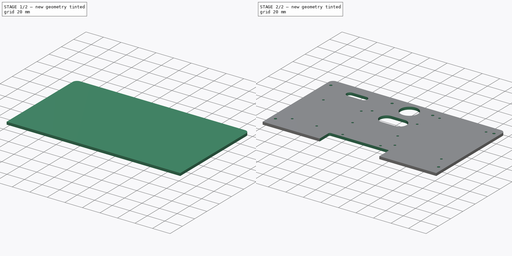
[diagram: build sequence overview — one tinted view per stage of 2, left to right]
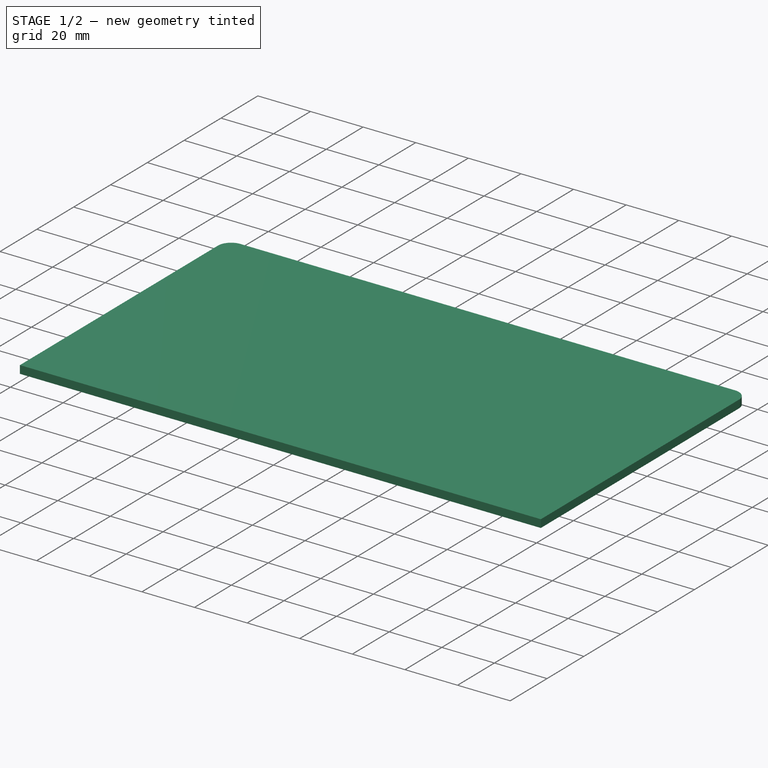
[diagram: stage 1 of 2 — iso view after this stage's code; geometry added in this stage tinted green]
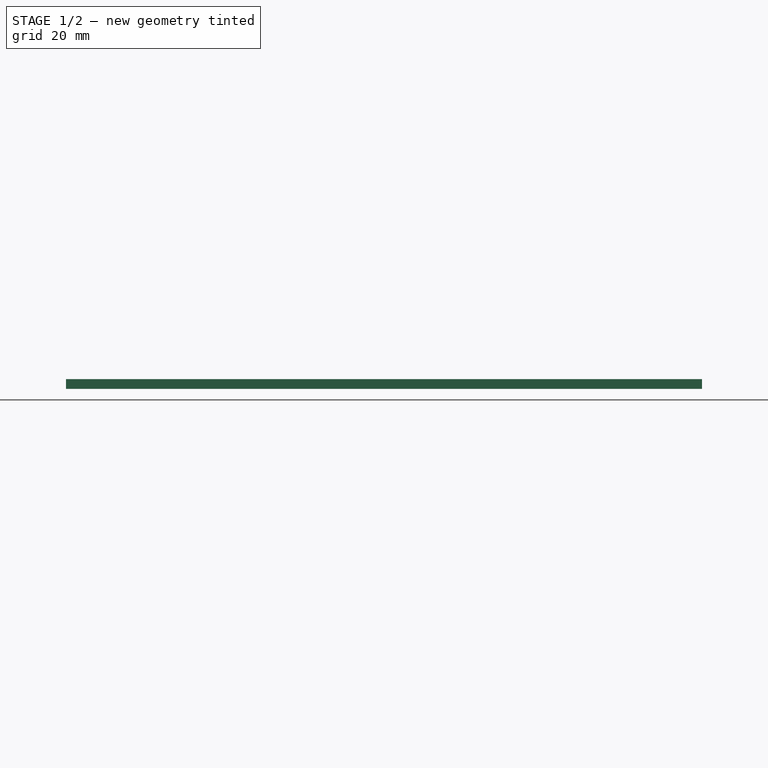
[diagram: stage 1 of 2 — front view after this stage's code; geometry added in this stage tinted green]
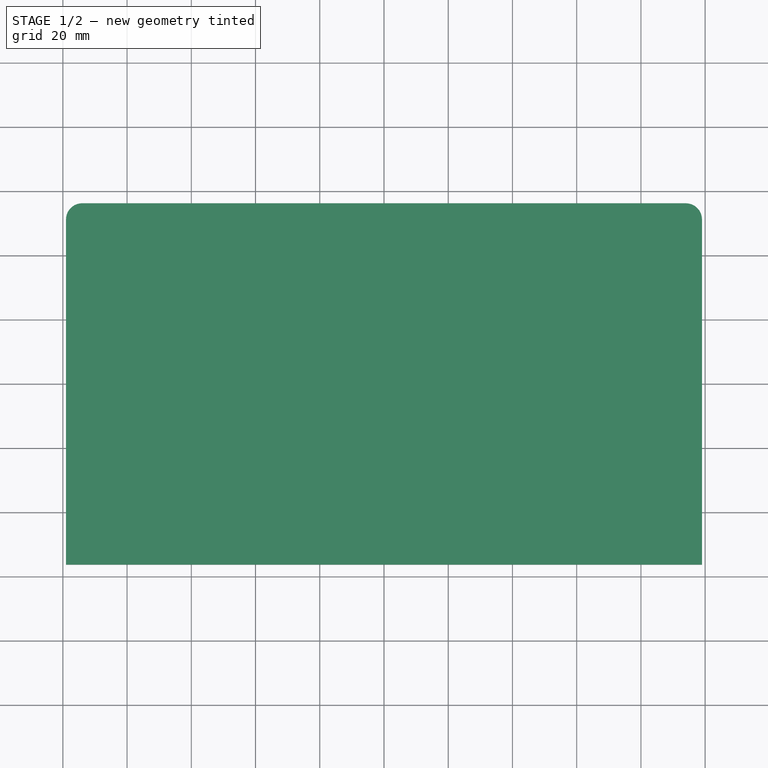
[diagram: stage 1 of 2 — top view after this stage's code; geometry added in this stage tinted green]
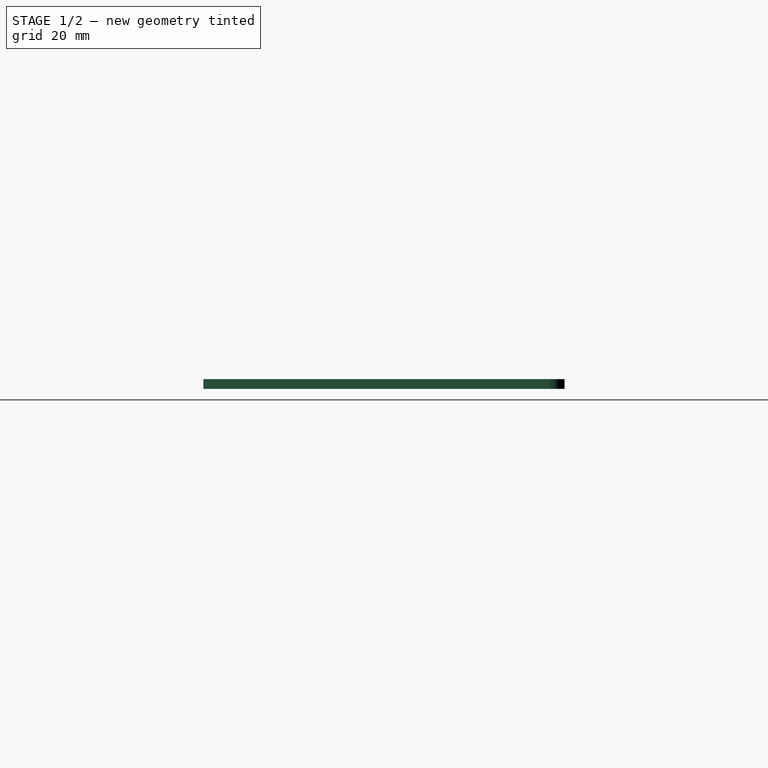
[diagram: stage 1 of 2 — right view after this stage's code; geometry added in this stage tinted green]
FCSTD DOCUMENT  (FreeCAD 0.18.4R)
Label: quimera_new_electronics_plate
License: All rights reserved
LicenseURL: http://en.wikipedia.org/wiki/All_rights_reserved
objects: Sketcher::SketchObject×2, PartDesign::Pad×1, PartDesign::Fillet×1, PartDesign::Pocket×1, PartDesign::Body×1
note: 8 computed .brp shape members not serialized (recipe doc carries the construction recipe); baked Part::Feature solids carry a one-line shape summary decoded from their .brp

FEATURE [Sketcher::SketchObject] Sketch
  MapMode = 5
  Support = -> [XY_Plane]
  sketch-geometry (4):
    g0: LineSegment StartX=-99 StartY=56.25 StartZ=0 EndX=99 EndY=56.25 EndZ=0
    g1: LineSegment StartX=99 StartY=56.25 StartZ=0 EndX=99 EndY=-56.25 EndZ=0
    g2: LineSegment StartX=99 StartY=-56.25 StartZ=0 EndX=-99 EndY=-56.25 EndZ=0
    g3: LineSegment StartX=-99 StartY=-56.25 StartZ=0 EndX=-99 EndY=56.25 EndZ=0
  constraints (11):
    c: Coincident(g0,g1)
    c: Coincident(g1,g2)
    c: Coincident(g2,g3)
    c: Coincident(g3,g0)
    c: Horizontal(g0)
    c: Horizontal(g2)
    c: Vertical(g1)
    c: Vertical(g3)
    c: Symmetric(g2,g0,g-1)
    c: DistanceY(g3,g3) = 112.5
    c: DistanceX(g2,g2) = 198
FEATURE [PartDesign::Pad] Pad
  Length = 3
  Length2 = 100
  Profile = -> Sketch
  Type = 0
FEATURE [PartDesign::Fillet] Fillet
  Base = -> Pad [Edge1,Edge2]
  BaseFeature = -> Pad
  Radius = 5
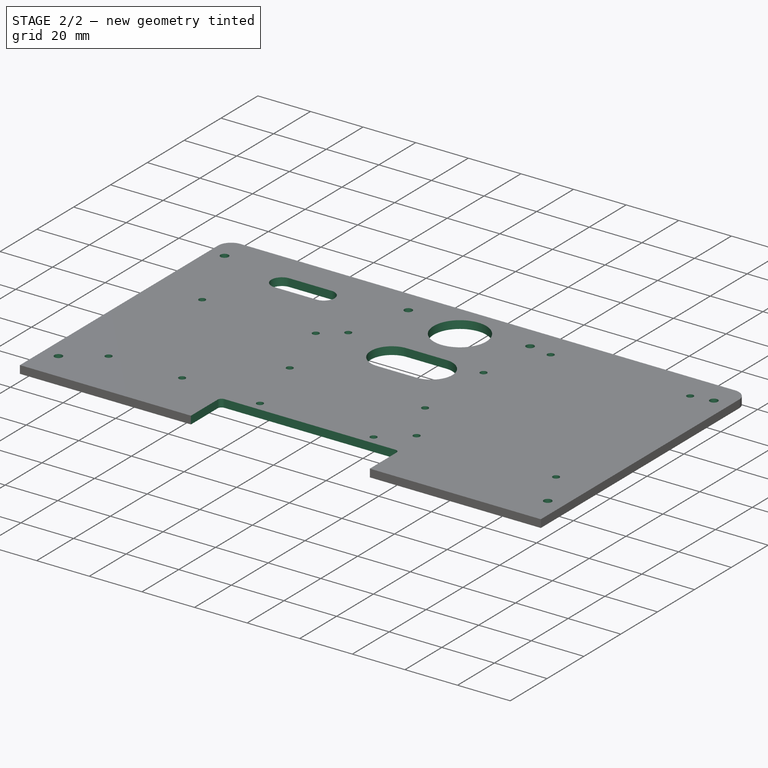
[diagram: stage 2 of 2 — iso view after this stage's code; geometry added in this stage tinted green]
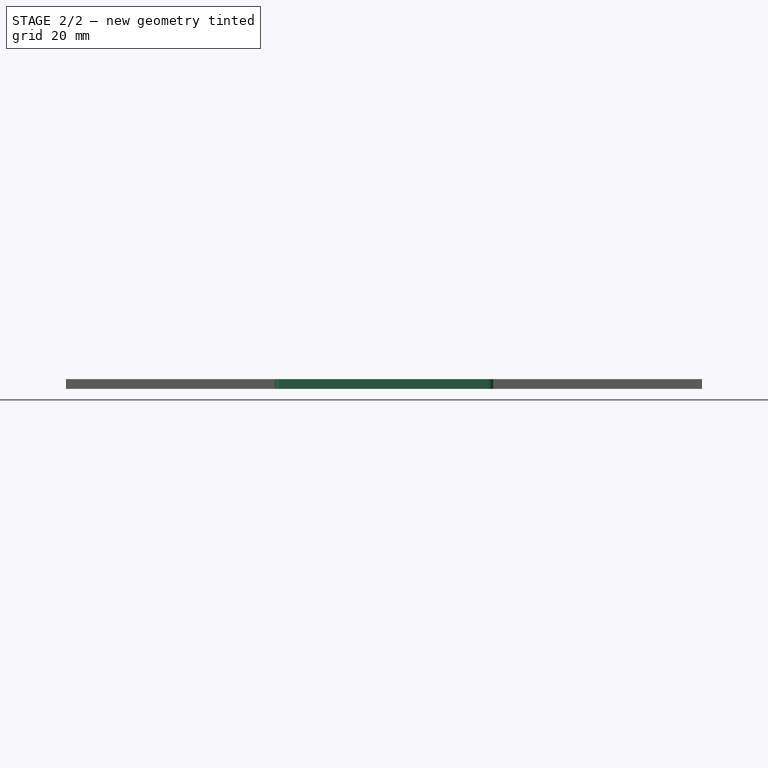
[diagram: stage 2 of 2 — front view after this stage's code; geometry added in this stage tinted green]
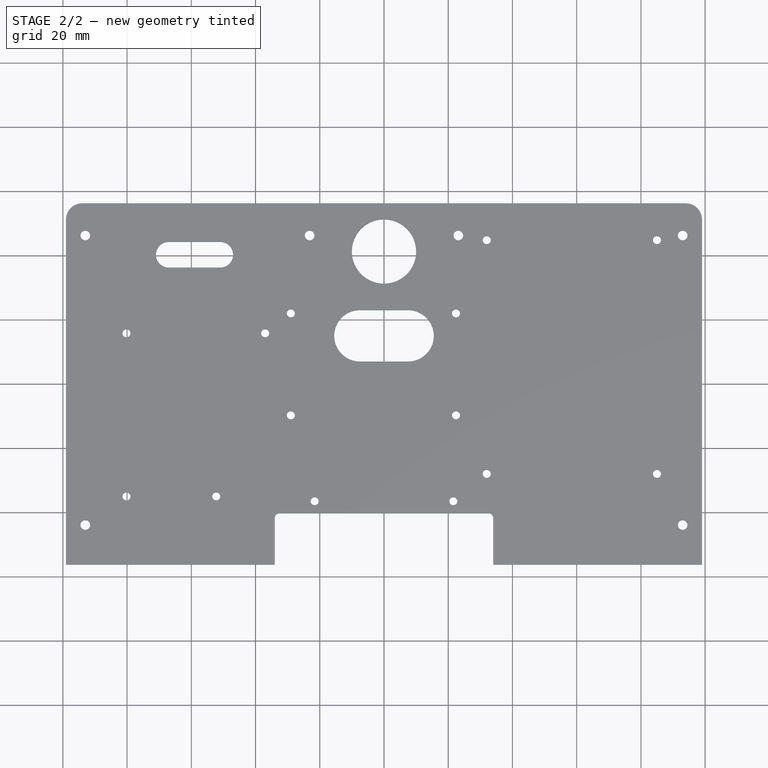
[diagram: stage 2 of 2 — top view after this stage's code; geometry added in this stage tinted green]
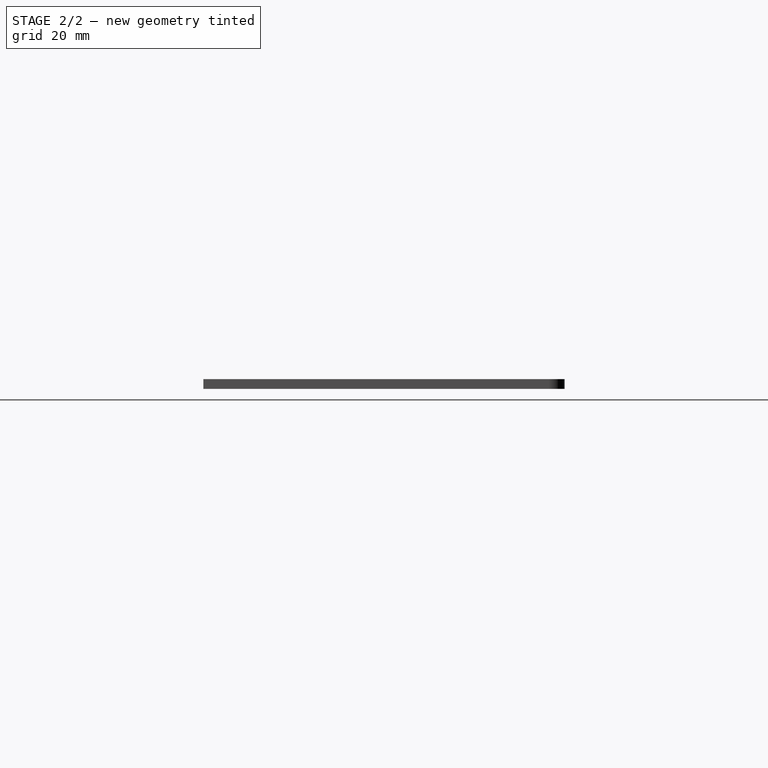
[diagram: stage 2 of 2 — right view after this stage's code; geometry added in this stage tinted green]
FEATURE [Sketcher::SketchObject] Sketch001
  MapMode = 5
  Placement = pos=(0,0,3) rot=(0,0,1;0rad)
  Support = -> [Fillet]
  sketch-geometry (51):
    g0: LineSegment StartX=-32.5 StartY=-40.25 StartZ=0 EndX=32.5 EndY=-40.25 EndZ=0
    g1: LineSegment StartX=34 StartY=-41.75 StartZ=0 EndX=34 EndY=-56.25 EndZ=0
    g2: LineSegment StartX=34 StartY=-56.25 StartZ=0 EndX=-34 EndY=-56.25 EndZ=0
    g3: LineSegment StartX=-34 StartY=-56.25 StartZ=0 EndX=-34 EndY=-41.75 EndZ=0
    g4: ArcOfCircle CenterX=-32.5 CenterY=-41.75 CenterZ=0 NormalX=0 NormalY=0 NormalZ=1 AngleXU=0 Radius=1.5 StartAngle=1.5708 EndAngle=3.14159
    g5: ArcOfCircle CenterX=32.5 CenterY=-41.75 CenterZ=0 NormalX=0 NormalY=0 NormalZ=1 AngleXU=0 Radius=1.5 StartAngle=2e-16 EndAngle=1.5708
    g6: Circle CenterX=-93 CenterY=46.25 CenterZ=0 NormalX=0 NormalY=0 NormalZ=1 AngleXU=0 Radius=1.5
    g7: Circle CenterX=-93 CenterY=-43.92 CenterZ=0 NormalX=0 NormalY=0 NormalZ=1 AngleXU=0 Radius=1.5
    g8: Circle CenterX=93 CenterY=46.25 CenterZ=0 NormalX=0 NormalY=0 NormalZ=1 AngleXU=0 Radius=1.5
    g9: Circle CenterX=93 CenterY=-43.92 CenterZ=0 NormalX=0 NormalY=0 NormalZ=1 AngleXU=0 Radius=1.5
    g10: Circle CenterX=-23.15 CenterY=46.25 CenterZ=0 NormalX=0 NormalY=0 NormalZ=1 AngleXU=0 Radius=1.5
    g11: Circle CenterX=23.15 CenterY=46.25 CenterZ=0 NormalX=0 NormalY=0 NormalZ=1 AngleXU=0 Radius=1.5
    g12: Circle CenterX=0 CenterY=41.25 CenterZ=0 NormalX=0 NormalY=0 NormalZ=1 AngleXU=0 Radius=10
    g13: ArcOfCircle CenterX=-67 CenterY=40.25 CenterZ=0 NormalX=0 NormalY=0 NormalZ=1 AngleXU=0 Radius=4 StartAngle=1.5708 EndAngle=4.71239
    g14: ArcOfCircle CenterX=-51 CenterY=40.25 CenterZ=0 NormalX=0 NormalY=0 NormalZ=1 AngleXU=0 Radius=4 StartAngle=4.71239 EndAngle=7.85398
    g15: LineSegment StartX=-67 StartY=36.25 StartZ=0 EndX=-51 EndY=36.25 EndZ=0
    g16: LineSegment StartX=-67 StartY=44.25 StartZ=0 EndX=-51 EndY=44.25 EndZ=0
    g17: Circle CenterX=-21.59 CenterY=-36.5 CenterZ=0 NormalX=0 NormalY=0 NormalZ=1 AngleXU=0 Radius=1.25
    g18: Circle CenterX=21.59 CenterY=-36.5 CenterZ=0 NormalX=0 NormalY=0 NormalZ=1 AngleXU=0 Radius=1.25
    g19: LineSegment [constr] StartX=-29 StartY=22 StartZ=0 EndX=22.43 EndY=22 EndZ=0
    g20: LineSegment [constr] StartX=22.43 StartY=22 StartZ=0 EndX=22.43 EndY=-9.75 EndZ=0
    g21: LineSegment [constr] StartX=22.43 StartY=-9.75 StartZ=0 EndX=-29 EndY=-9.75 EndZ=0
    g22: LineSegment [constr] StartX=-29 StartY=-9.75 StartZ=0 EndX=-29 EndY=22 EndZ=0
    g23: Circle CenterX=-29 CenterY=22 CenterZ=0 NormalX=0 NormalY=0 NormalZ=1 AngleXU=0 Radius=1.25
    g24: Circle CenterX=-29 CenterY=-9.75 CenterZ=0 NormalX=0 NormalY=0 NormalZ=1 AngleXU=0 Radius=1.25
    g25: Circle CenterX=22.43 CenterY=-9.75 CenterZ=0 NormalX=0 NormalY=0 NormalZ=1 AngleXU=0 Radius=1.25
    g26: Circle CenterX=22.43 CenterY=22 CenterZ=0 NormalX=0 NormalY=0 NormalZ=1 AngleXU=0 Radius=1.25
    g27: LineSegment [constr] StartX=-80.18 StartY=15.8 StartZ=0 EndX=-37 EndY=15.8 EndZ=0
    g28: LineSegment [constr] StartX=-37 StartY=15.8 StartZ=0 EndX=-37 EndY=-35 EndZ=0
    g29: LineSegment [constr] StartX=-37 StartY=-35 StartZ=0 EndX=-80.18 EndY=-35 EndZ=0
    g30: LineSegment [constr] StartX=-80.18 StartY=-35 StartZ=0 EndX=-80.18 EndY=15.8 EndZ=0
    g31: Circle CenterX=-80.18 CenterY=15.8 CenterZ=0 NormalX=0 NormalY=0 NormalZ=1 AngleXU=0 Radius=1.25
    g32: Circle CenterX=-37 CenterY=15.8 CenterZ=0 NormalX=0 NormalY=0 NormalZ=1 AngleXU=0 Radius=1.25
    g33: Circle CenterX=-80.18 CenterY=-35 CenterZ=0 NormalX=0 NormalY=0 NormalZ=1 AngleXU=0 Radius=1.25
    g34: LineSegment [constr] StartX=32 StartY=44.8 StartZ=0 EndX=85 EndY=44.8 EndZ=0
    g35: LineSegment [constr] StartX=85 StartY=44.8 StartZ=0 EndX=85 EndY=-28 EndZ=0
    g36: LineSegment [constr] StartX=85 StartY=-28 StartZ=0 EndX=32 EndY=-28 EndZ=0
    g37: LineSegment [constr] StartX=32 StartY=-28 StartZ=0 EndX=32 EndY=44.8 EndZ=0
    g38: Circle CenterX=32 CenterY=44.8 CenterZ=0 NormalX=0 NormalY=0 NormalZ=1 AngleXU=0 Radius=1.25
    g39: Circle CenterX=85 CenterY=44.8 CenterZ=0 NormalX=0 NormalY=0 NormalZ=1 AngleXU=0 Radius=1.25
    g40: Circle CenterX=32 CenterY=-28 CenterZ=0 NormalX=0 NormalY=0 NormalZ=1 AngleXU=0 Radius=1.25
    g41: Circle CenterX=85 CenterY=-28 CenterZ=0 NormalX=0 NormalY=0 NormalZ=1 AngleXU=0 Radius=1.25
    g42: LineSegment [constr] StartX=28.5 StartY=48.3 StartZ=0 EndX=88.5 EndY=48.3 EndZ=0
    g43: LineSegment [constr] StartX=88.5 StartY=48.3 StartZ=0 EndX=88.5 EndY=-41.7 EndZ=0
    g44: LineSegment [constr] StartX=88.5 StartY=-41.7 StartZ=0 EndX=28.5 EndY=-41.7 EndZ=0
    g45: LineSegment [constr] StartX=28.5 StartY=-41.7 StartZ=0 EndX=28.5 EndY=48.3 EndZ=0
    g46: ArcOfCircle CenterX=-7.5 CenterY=15 CenterZ=0 NormalX=0 NormalY=0 NormalZ=1 AngleXU=0 Radius=8 StartAngle=1.5708 EndAngle=4.71239
    g47: ArcOfCircle CenterX=7.5 CenterY=15 CenterZ=0 NormalX=0 NormalY=0 NormalZ=1 AngleXU=0 Radius=8 StartAngle=4.71239 EndAngle=7.85398
    g48: LineSegment StartX=-7.5 StartY=7 StartZ=0 EndX=7.5 EndY=7 EndZ=0
    g49: LineSegment StartX=-7.5 StartY=23 StartZ=0 EndX=7.5 EndY=23 EndZ=0
    g50: Circle CenterX=-52.24 CenterY=-35 CenterZ=0 NormalX=0 NormalY=0 NormalZ=1 AngleXU=0 Radius=1.25
  constraints (131):
    c: Coincident(g1,g2)
    c: Coincident(g2,g3)
    c: Horizontal(g0)
    c: Vertical(g1)
    c: Vertical(g3)
    c: Tangent(g0,g4) = 1.5708
    c: Tangent(g3,g4) = 1.5708
    c: Tangent(g0,g5) = 1.5708
    c: Tangent(g1,g5) = 1.5708
    c: Equal(g4,g5)
    c: Symmetric(g2,g1,g-2)
    c: DistanceX(g2,g2) = 68
    c: Radius(g4) = 1.5
    c: DistanceY(g2,g0) = 16
    c: DistanceY(g2) = -56.25
    c: Horizontal(g6,g10)
    c: Symmetric(g10,g11,g-2)
    c: Symmetric(g6,g8,g-2)
    c: Equal(g6,g7)
    c: Equal(g7,g10)
    c: Equal(g10,g11)
    c: Equal(g11,g9)
    c: Equal(g9,g8)
    c: Radius(g6) = 1.5
    c: DistanceX(g6,g8) = 186
    c: DistanceY(g9,g8) = 90.17
    c: Vertical(g8,g9)
    c: Vertical(g6,g7)
    c: DistanceX(g10,g11) = 46.3
    c: DistanceY(g6) = 46.25
    c: Horizontal(g7,g9)
    c: PointOnObject(g12,g-2)
    c: Radius(g12) = 10
    c: Tangent(g13,g16) = 1.5708
    c: Tangent(g13,g15) = -1.5708
    c: Tangent(g15,g14) = -1.5708
    c: Tangent(g16,g14) = 1.5708
    c: Horizontal(g15)
    c: Equal(g13,g14)
    c: Coincident(g19,g20)
    c: Coincident(g20,g21)
    c: Coincident(g21,g22)
    c: Coincident(g22,g19)
    c: Horizontal(g19)
    c: Vertical(g20)
    c: Vertical(g22)
    c: Coincident(g23,g19)
    c: Coincident(g24,g21)
    c: Coincident(g25,g20)
    c: Coincident(g26,g19)
    c: Equal(g23,g26)
    c: Equal(g26,g25)
    c: Equal(g25,g24)
    c: DistanceX(g19,g19) = 51.43
    c: DistanceY(g20,g20) = 31.75
    c: DistanceY(g12) = 41.25
    c: DistanceY(g26) = 22
    c: Symmetric(g17,g18,g-2)
    c: Equal(g17,g18)
    c: DistanceX(g17,g18) = 43.18
    c: Radius(g17) = 1.25
    c: Radius(g24) = 1.25
    c: DistanceX(g15,g15) = 16
    c: Radius(g14) = 4
    c: DistanceY(g18) = -36.5
    c: DistanceX(g14) = -51
    c: DistanceY(g14) = 40.25
    c: Coincident(g27,g28)
    c: Coincident(g28,g29)
    c: Coincident(g29,g30)
    c: Coincident(g30,g27)
    c: Horizontal(g27)
    c: Horizontal(g29)
    c: Vertical(g28)
    c: Vertical(g30)
    c: Coincident(g31,g27)
    c: Coincident(g32,g27)
    c: Coincident(g33,g29)
    c: Equal(g31,g33)
    c: Equal(g32,g33)
    c: Radius(g33) = 1.25
    c: DistanceX(g29,g29) = 43.18
    c: DistanceY(g30,g30) = 50.8
    c: Coincident(g34,g35)
    c: Coincident(g35,g36)
    c: Coincident(g36,g37)
    c: Coincident(g37,g34)
    c: Horizontal(g34)
    c: Horizontal(g36)
    c: Vertical(g35)
    c: Vertical(g37)
    c: Coincident(g38,g34)
    c: Coincident(g39,g34)
    c: Coincident(g40,g36)
    c: Coincident(g41,g35)
    c: Equal(g41,g40)
    c: Equal(g40,g38)
    c: Equal(g38,g39)
    c: Radius(g40) = 1.25
    c: DistanceX(g36,g36) = 53
    c: DistanceY(g35,g35) = 72.8
    c: Coincident(g42,g43)
    c: Coincident(g43,g44)
    c: Coincident(g44,g45)
    c: Coincident(g45,g42)
    c: Horizontal(g42)
    c: Horizontal(g44)
    c: Vertical(g43)
    c: Vertical(g45)
    c: DistanceX(g41,g43) = 3.5
    c: DistanceX(g44,g44) = 60
    c: DistanceY(g43,g43) = 90
    c: DistanceY(g39,g42) = 3.5
    c: DistanceX(g40) = 32
    c: DistanceY(g40) = -28
    c: Tangent(g46,g49) = 1.5708
    c: Tangent(g46,g48) = -1.5708
    c: Tangent(g48,g47) = -1.5708
    c: Tangent(g49,g47) = 1.5708
    c: Horizontal(g48)
    c: Radius(g46) = 8
    c: DistanceX(g46,g47) = 15
    c: Symmetric(g46,g47,g-2)
    c: DistanceY(g47) = 15
    c: PointOnObject(g50,g29)
    c: Equal(g33,g50)
    c: DistanceX(g33,g50) = 27.94
    c: DistanceX(g28) = -37
    c: DistanceY(g28) = -35
    c: DistanceX(g24) = -29
    c: DistanceY(g22,g22) = 31.75
FEATURE [PartDesign::Pocket] Pocket
  BaseFeature = -> Fillet
  Length = 5
  Length2 = 100
  Profile = -> Sketch001
  Type = 1
FEATURE [PartDesign::Body] Body
  Group = -> [Sketch,Pad,Fillet,Sketch001,Pocket]
  Origin = -> Origin
  Tip = -> Pocket
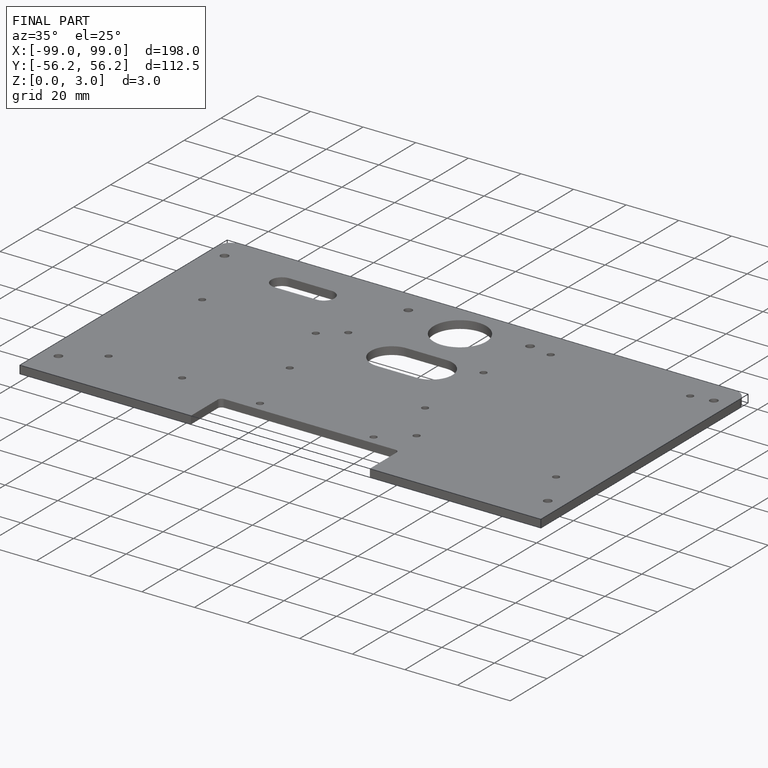
[diagram: finished part — iso view with bounding-box wireframe]
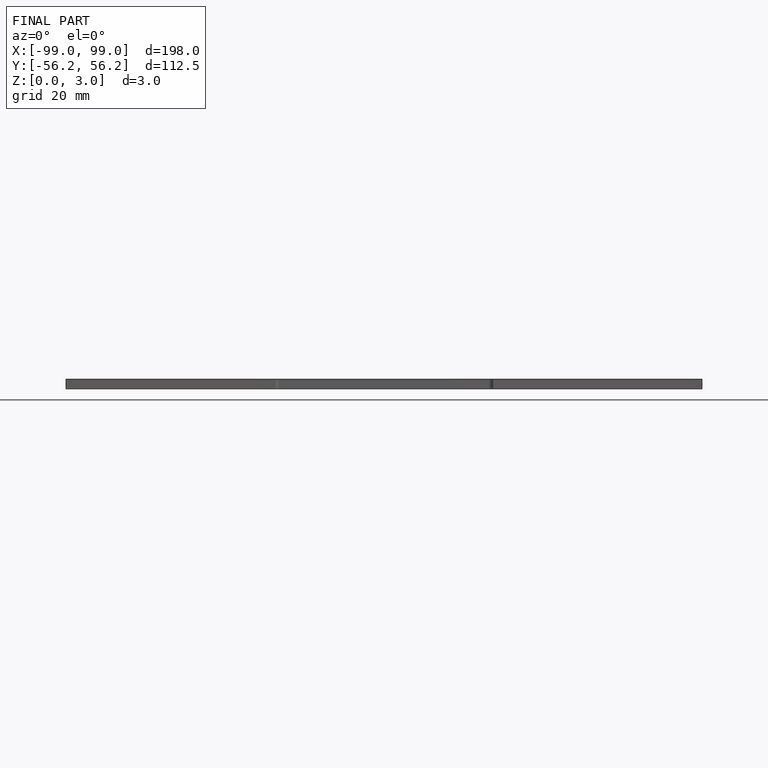
[diagram: finished part — front view with bounding-box wireframe]
